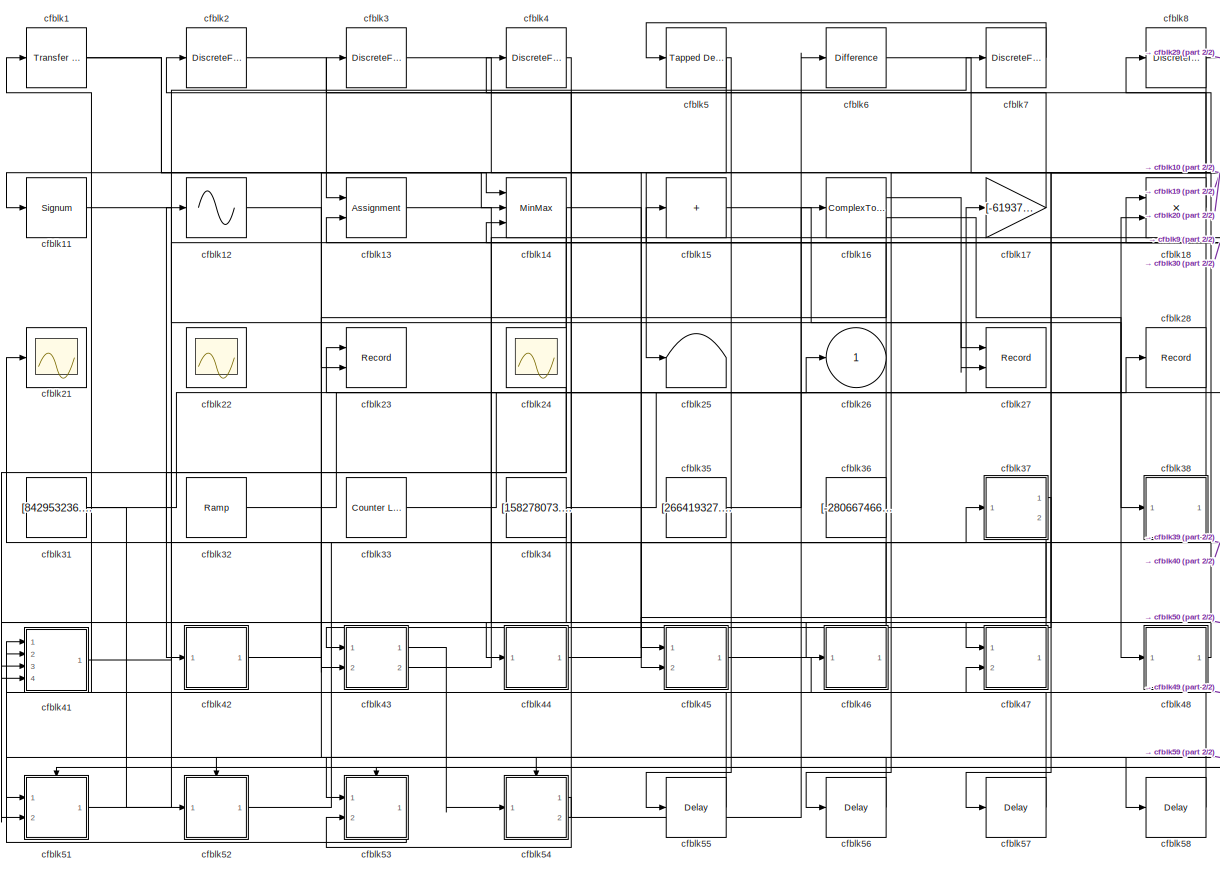
[diagram: root canvas - part 1/2, most of the canvas]
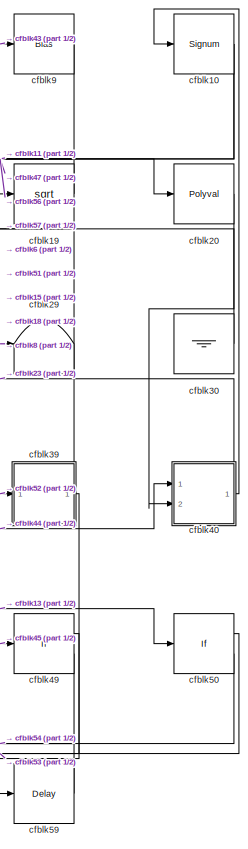
[diagram: root canvas - part 2/2, right side, full height]
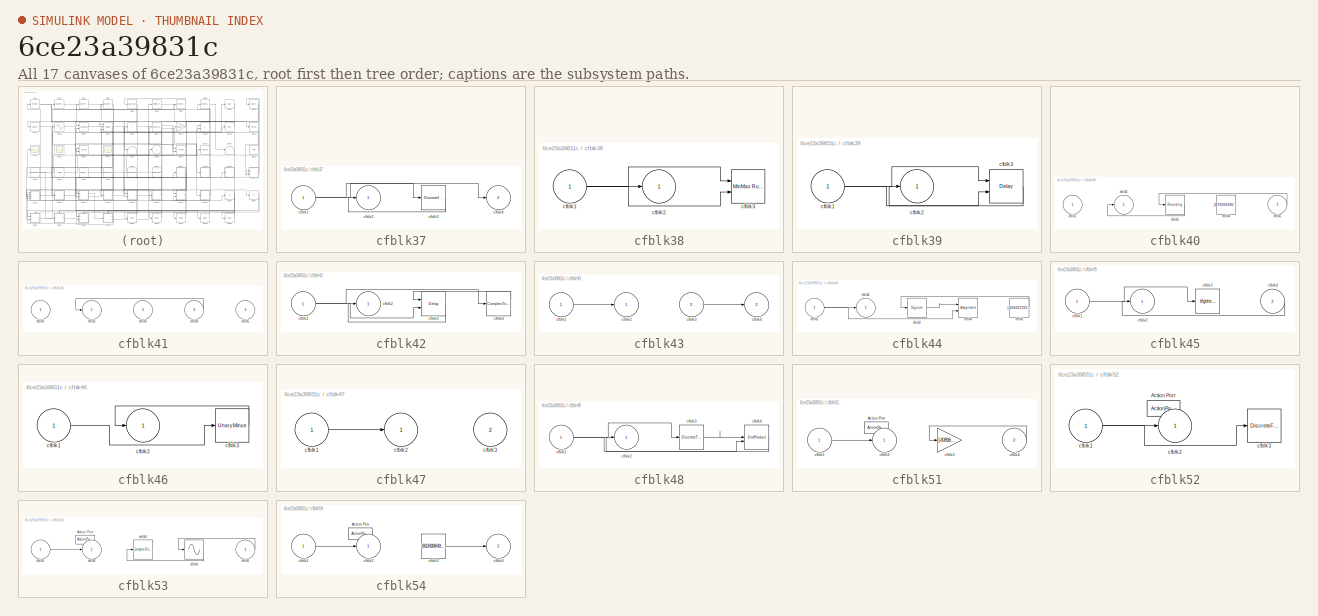
[diagram: thumbnail index - all 17 canvases of the model, root first then tree order]
MODEL slx_6ce23a39831c
KIND model
CONFIG AbsTol = auto
CONFIG EnableMultiTasking = off
CONFIG FixedStep = auto
CONFIG MaxStep = auto
CONFIG MinStep = auto
CONFIG RelTol = 1e-3
CONFIG SampleTimeConstraint = Unconstrained
CONFIG SolverName = VariableStepAuto
CONFIG StartTime = 0.0
CONFIG StopTime = 10.0
BLOCK [Reference] cfblk1  REF=simulink/Discrete/Transfer Fcn
First Order
  Ports = [1, 1]
  SourceBlock = simulink/Discrete/Transfer Fcn\nFirst Order
  SourceProductBaseCode = SL
  SourceType = First Order Transfer Fcn
BLOCK [Signum] cfblk10
BLOCK [Signum] cfblk11
BLOCK [Sin] cfblk12
  Ports = [1, 1]
  SampleTime = 0
  TimeSource = Use external signal
BLOCK [Assignment] cfblk13
  DiagnosticForDimensions = Warning
  IndexOptions = Index vector (dialog)
  Indices = 1
  OutputSizes = 1
  Ports = [2, 1]
BLOCK [MinMax] cfblk14
  Function = max
  Inputs = 3
  Ports = [3, 1]
BLOCK [Sum] cfblk15
  IconShape = rectangular
  Inputs = +
  Ports = [1, 1]
BLOCK [ComplexToRealImag] cfblk16
  Ports = [1, 2]
BLOCK [Gain] cfblk17
  Gain = [-619372760.811448]
BLOCK [Product] cfblk18
  Ports = [2, 1]
BLOCK [Sqrt] cfblk19
BLOCK [DiscreteFir] cfblk2
  InputPortMap = u0
  OutputPortMap = o0
  Ports = [1, 1]
  SampleTime = 1
BLOCK [Polyval] cfblk20
  Coefs = [ +2.081618890e-019, -1.441693666e-014, +4.719686976e-010, -8.536869453e-006, +1.621573104e-001, -8.087801117e+001 ]
BLOCK [Scope] cfblk21
  Floating = off
  NumInputPorts = 1
  Ports = [1]
BLOCK [Scope] cfblk22
  Floating = on
  NumInputPorts = 1
  Ports = []
BLOCK [Record] cfblk23
  CompatibilityTag = XY
  FileSettingsInternal = {"entries":[{"content":{"excelSettings":{"content":{},"type":"Streamout.ExcelSettings"}},"type":"Streamout.FileSettingStorage","uuid":"0ee5e5d3-5951-4c48-9d89-32d8b12ba518"}],"packageUris":["http://schema.mathworks.com/mf0/streamout_blocks/R2020a"],"version":"1.0"}
  Layout = [1 1]
  Ports = [2]
  SignalsInternal = {"entries":[{"content":{"signals":[{"content":{"blockPath":["sampleModel223/cfblk23"],"channel":[],"dimensions":[1],"domain":"sampleModel223/cfblk23","lineColor":"#a2142f","plots":[1],"port":1,"sid":[""],"signalID":8702,"signalName":"cfblk40"},"type":"RecordBlkView.Signal","uuid":"30bc6bd1-39a8-4b59-9cbd-2b18e3afbf50"},{"content":{"blockPath":["sampleModel223/cfblk23"],"channel":[],"dimensions":[1...<+385ch>
  VisualizationBindings = {"xyplotplugin":{"info":[{"series":[{"bindingParametersList":[{"parameter":"X-Axis","signalID":8702,"signalName":"cfblk40"},{"parameter":"Y-Axis","signalID":8706,"signalName":"cfblk16:2"}],"seriesID":59310}],"subplotID":1}]}}
BLOCK [Scope] cfblk24
  Floating = on
  NumInputPorts = 1
  Ports = []
BLOCK [Terminator] cfblk25
BLOCK [Outport] cfblk26
BLOCK [Record] cfblk27
  CompatibilityTag = XY
  FileSettingsInternal = {"entries":[{"content":{"excelSettings":{"content":{},"type":"Streamout.ExcelSettings"}},"type":"Streamout.FileSettingStorage","uuid":"b9045ad8-1652-4b93-96d3-11a4ff897f15"}],"packageUris":["http://schema.mathworks.com/mf0/streamout_blocks/R2020a"],"version":"1.0"}
  Layout = [1 1]
  Ports = [2]
  SignalsInternal = {"entries":[{"content":{"signals":[{"content":{"blockPath":["sampleModel223/cfblk27"],"channel":[],"dimensions":[1],"domain":"sampleModel223/cfblk27","lineColor":"#a2142f","plots":[1],"port":1,"sid":[""],"signalID":8710,"signalName":"cfblk16:1"},"type":"RecordBlkView.Signal","uuid":"1ed41653-2a62-4b63-b81e-2f1a57827a1a"},{"content":{"blockPath":["sampleModel223/cfblk27"],"channel":[],"dimensions":...<+385ch>
  VisualizationBindings = {"xyplotplugin":{"info":[{"series":[{"bindingParametersList":[{"parameter":"X-Axis","signalID":8710,"signalName":"cfblk16:1"},{"parameter":"Y-Axis","signalID":8714,"signalName":"cfblk11"}],"seriesID":26914}],"subplotID":1}]}}
BLOCK [Record] cfblk28
  FileSettingsInternal = {"entries":[{"content":{"excelSettings":{"content":{},"type":"Streamout.ExcelSettings"}},"type":"Streamout.FileSettingStorage","uuid":"d52c9f09-3e23-41ac-822c-45c95d6e0353"}],"packageUris":["http://schema.mathworks.com/mf0/streamout_blocks/R2020a"],"version":"1.0"}
  Ports = [1]
  SignalsInternal = {"entries":[{"content":{"signals":[{"content":{"blockPath":["sampleModel223/cfblk28"],"channel":[],"dimensions":[1],"domain":"sampleModel223/cfblk28","lineColor":"#a2142f","plots":[1],"port":1,"sid":[""],"signalID":8718,"signalName":"cfblk33"},"type":"RecordBlkView.Signal","uuid":"ab8a1c3b-5c01-4c72-8513-52e01dea01a3"}]},"type":"RecordBlkView.InputSignals","uuid":"638a2006-718f-46db-b654-e0460e5be...<+97ch>
  VisualizationBindings = {"sparklinesplugin":{"info":[{"bindingParametersList":[],"subplotID":1}]}}
BLOCK [Terminator] cfblk29
BLOCK [DiscreteFir] cfblk3
  InputPortMap = u0
  OutputPortMap = o0
  Ports = [1, 1]
  SampleTime = 1
BLOCK [Ground] cfblk30
BLOCK [Constant] cfblk31
  SampleTime = 1
  Value = [842953236.039546]
BLOCK [Reference] cfblk32  REF=simulink/Sources/Ramp
  Ports = [0, 1]
  SourceBlock = simulink/Sources/Ramp
  SourceProductBaseCode = SL
  SourceType = Ramp
BLOCK [Reference] cfblk33  REF=simulink/Sources/Counter
Limited
  Ports = [0, 1]
  SourceBlock = simulink/Sources/Counter\nLimited
  SourceProductBaseCode = SL
  SourceType = Counter Limited
BLOCK [Constant] cfblk34
  SampleTime = 1
  Value = [158278073.144077]
BLOCK [Constant] cfblk35
  SampleTime = 1
  Value = [266419327.095353]
BLOCK [Constant] cfblk36
  SampleTime = 1
  Value = [-280667466.235929]
BLOCK [SubSystem] cfblk37
  Ports = [1, 2]
  RequestExecContextInheritance = off
BLOCK [Inport] cfblk37/cfblk1
BLOCK [Outport] cfblk37/cfblk2
BLOCK [DiscreteIntegrator] cfblk37/cfblk3
  ICPrevOutput = DiscIntNeverNeededParam
  ICPrevScaledInput = DiscIntNeverNeededParam
  InitialConditionSetting = Auto
  Ports = [1, 1]
BLOCK [Outport] cfblk37/cfblk4
  Port = 2
BLOCK [SubSystem] cfblk38
  Ports = [1, 1]
  RequestExecContextInheritance = off
BLOCK [Inport] cfblk38/cfblk1
BLOCK [Outport] cfblk38/cfblk2
BLOCK [Reference] cfblk38/cfblk3  REF=simulink/Math
Operations/MinMax
Running
Resettable
  Ports = [2, 1]
  SourceBlock = simulink/Math\nOperations/MinMax\nRunning\nResettable
  SourceProductBaseCode = SL
  SourceType = MinMax Running Resettable
BLOCK [SubSystem] cfblk39
  Ports = [1, 1]
  RequestExecContextInheritance = off
BLOCK [Inport] cfblk39/cfblk1
BLOCK [Outport] cfblk39/cfblk2
BLOCK [Delay] cfblk39/cfblk3
  InputPortMap = u0,e6
  Ports = [2, 1]
  SampleTime = 1
  ShowEnablePort = on
BLOCK [DiscreteFir] cfblk4
  InputPortMap = u0
  OutputPortMap = o0
  Ports = [1, 1]
  SampleTime = 1
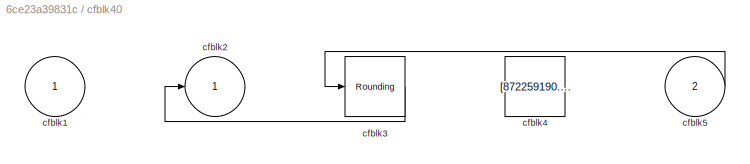
BLOCK [SubSystem] cfblk40
  Ports = [2, 1]
  RequestExecContextInheritance = off
BLOCK [Inport] cfblk40/cfblk1
BLOCK [Outport] cfblk40/cfblk2
BLOCK [Rounding] cfblk40/cfblk3
BLOCK [Constant] cfblk40/cfblk4
  SampleTime = 1
  Value = [872259190.837791]
BLOCK [Inport] cfblk40/cfblk5
  Port = 2
BLOCK [SubSystem] cfblk41
  Ports = [4, 1]
  RequestExecContextInheritance = off
BLOCK [Inport] cfblk41/cfblk1
BLOCK [Outport] cfblk41/cfblk2
BLOCK [Inport] cfblk41/cfblk3
  Port = 2
BLOCK [Inport] cfblk41/cfblk4
  Port = 3
BLOCK [Inport] cfblk41/cfblk5
  Port = 4
BLOCK [SubSystem] cfblk42
  Ports = [1, 1]
  RequestExecContextInheritance = off
BLOCK [Inport] cfblk42/cfblk1
BLOCK [Outport] cfblk42/cfblk2
BLOCK [Delay] cfblk42/cfblk3
  DelayLengthSource = Input port
  InputPortMap = u0,p1
  Ports = [2, 1]
  SampleTime = 1
BLOCK [ComplexToMagnitudeAngle] cfblk42/cfblk4
  Ports = [1, 2]
BLOCK [SubSystem] cfblk43
  Ports = [2, 2]
  RequestExecContextInheritance = off
BLOCK [Inport] cfblk43/cfblk1
BLOCK [Outport] cfblk43/cfblk2
BLOCK [Inport] cfblk43/cfblk3
  Port = 2
BLOCK [Outport] cfblk43/cfblk4
  Port = 2
BLOCK [SubSystem] cfblk44
  Ports = [1, 1]
  RequestExecContextInheritance = off
BLOCK [Inport] cfblk44/cfblk1
BLOCK [Outport] cfblk44/cfblk2
BLOCK [Signum] cfblk44/cfblk3
BLOCK [Assignment] cfblk44/cfblk4
  DiagnosticForDimensions = Warning
  IndexOptions = Index vector (dialog)
  Indices = 1
  OutputSizes = 1
  Ports = [2, 1]
BLOCK [Constant] cfblk44/cfblk5
  SampleTime = 1
  Value = [-291637221.913269]
BLOCK [SubSystem] cfblk45
  Ports = [2, 1]
  RequestExecContextInheritance = off
BLOCK [Inport] cfblk45/cfblk1
BLOCK [Outport] cfblk45/cfblk2
BLOCK [Trigonometry] cfblk45/cfblk3
  Ports = [1, 1]
BLOCK [Inport] cfblk45/cfblk4
  Port = 2
BLOCK [SubSystem] cfblk46
  Ports = [1, 1]
  RequestExecContextInheritance = off
BLOCK [Inport] cfblk46/cfblk1
BLOCK [Outport] cfblk46/cfblk2
BLOCK [UnaryMinus] cfblk46/cfblk3
BLOCK [SubSystem] cfblk47
  Ports = [2, 1]
  RequestExecContextInheritance = off
BLOCK [Inport] cfblk47/cfblk1
BLOCK [Outport] cfblk47/cfblk2
BLOCK [Inport] cfblk47/cfblk3
  Port = 2
BLOCK [SubSystem] cfblk48
  Ports = [1, 1]
  RequestExecContextInheritance = off
BLOCK [Inport] cfblk48/cfblk1
BLOCK [Outport] cfblk48/cfblk2
BLOCK [DiscreteTransferFcn] cfblk48/cfblk3
  InputPortMap = u0
  Ports = [1, 1]
  SampleTime = 1
BLOCK [DotProduct] cfblk48/cfblk4
  OutDataTypeStr = Inherit: Inherit via internal rule
BLOCK [If] cfblk49
  IfExpression = u1 >= 0
  Ports = [1, 2]
  SampleTime = 1
BLOCK [Reference] cfblk5  REF=simulink/Discrete/Tapped Delay
  Ports = [1, 1]
  SourceBlock = simulink/Discrete/Tapped Delay
  SourceProductBaseCode = SL
  SourceType = Tapped Delay Line
BLOCK [If] cfblk50
  IfExpression = u1 >= 0
  Ports = [1, 2]
  SampleTime = 1
BLOCK [SubSystem] cfblk51
  Ports = [2, 1, 0, 0, 0, 0, 0, 1]
  RequestExecContextInheritance = off
  TreatAsAtomicUnit = on
BLOCK [ActionPort] cfblk51/Action Port
  ActionPortLabel = if(u1 >= 0)
BLOCK [Inport] cfblk51/cfblk1
BLOCK [Outport] cfblk51/cfblk2
BLOCK [Gain] cfblk51/cfblk3
  Gain = [-838966368.618346]
BLOCK [Inport] cfblk51/cfblk4
  Port = 2
BLOCK [SubSystem] cfblk52
  Ports = [1, 1, 0, 0, 0, 0, 0, 1]
  RequestExecContextInheritance = off
  TreatAsAtomicUnit = on
BLOCK [ActionPort] cfblk52/Action Port
  ActionPortLabel = else
BLOCK [Inport] cfblk52/cfblk1
BLOCK [Outport] cfblk52/cfblk2
BLOCK [DiscreteFilter] cfblk52/cfblk3
  InputPortMap = u0
  Ports = [1, 1]
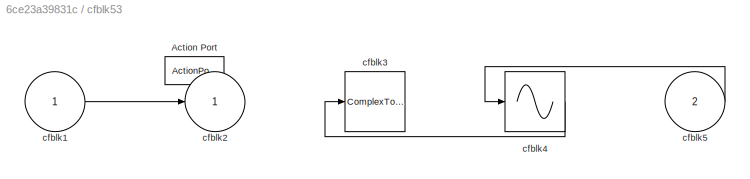
BLOCK [SubSystem] cfblk53
  Ports = [2, 1, 0, 0, 0, 0, 0, 1]
  RequestExecContextInheritance = off
  TreatAsAtomicUnit = on
BLOCK [ActionPort] cfblk53/Action Port
  ActionPortLabel = if(u1 >= 0)
BLOCK [Inport] cfblk53/cfblk1
BLOCK [Outport] cfblk53/cfblk2
BLOCK [ComplexToMagnitudeAngle] cfblk53/cfblk3
  Ports = [1, 2]
BLOCK [Sin] cfblk53/cfblk4
  Ports = [1, 1]
  SampleTime = 0
  TimeSource = Use external signal
BLOCK [Inport] cfblk53/cfblk5
  Port = 2
BLOCK [SubSystem] cfblk54
  Ports = [1, 2, 0, 0, 0, 0, 0, 1]
  RequestExecContextInheritance = off
  TreatAsAtomicUnit = on
BLOCK [ActionPort] cfblk54/Action Port
  ActionPortLabel = else
BLOCK [Inport] cfblk54/cfblk1
BLOCK [Outport] cfblk54/cfblk2
BLOCK [Constant] cfblk54/cfblk3
  SampleTime = 1
  Value = [663499649.234152]
BLOCK [Outport] cfblk54/cfblk4
  Port = 2
BLOCK [Delay] cfblk55
  InputPortMap = u0
  Ports = [1, 1]
  SampleTime = 1
BLOCK [Delay] cfblk56
  InputPortMap = u0
  Ports = [1, 1]
  SampleTime = 1
BLOCK [Delay] cfblk57
  InputPortMap = u0
  Ports = [1, 1]
  SampleTime = 1
BLOCK [Delay] cfblk58
  InputPortMap = u0
  Ports = [1, 1]
  SampleTime = 1
BLOCK [Delay] cfblk59
  InputPortMap = u0
  Ports = [1, 1]
  SampleTime = 1
BLOCK [Reference] cfblk6  REF=simulink/Discrete/Difference
  Ports = [1, 1]
  SourceBlock = simulink/Discrete/Difference
  SourceProductBaseCode = SL
  SourceType = Difference
BLOCK [DiscreteFir] cfblk7
  InputPortMap = u0
  OutputPortMap = o0
  Ports = [1, 1]
  SampleTime = 1
BLOCK [DiscreteIntegrator] cfblk8
  ICPrevOutput = DiscIntNeverNeededParam
  ICPrevScaledInput = DiscIntNeverNeededParam
  InitialConditionSetting = Auto
  Ports = [1, 1]
BLOCK [Bias] cfblk9
  Bias = [629134870.788105]
  SaturateOnIntegerOverflow = off
NET cfblk10:1 -> cfblk56:1, cfblk57:1
LINE cfblk11:1 -> cfblk27:2
LINE cfblk12:1 -> cfblk58:1
LINE cfblk13:1 -> cfblk50:1
NET cfblk14:1 -> cfblk41:4, cfblk42:1, cfblk46:1
LINE cfblk15:1 -> cfblk38:1
LINE cfblk16:1 -> cfblk27:1
NET cfblk16:2 -> cfblk23:2, cfblk48:1
LINE cfblk17:1 -> cfblk3:1
LINE cfblk18:1 -> cfblk2:1
LINE cfblk19:1 -> cfblk11:1
NET cfblk1:1 -> cfblk14:1, cfblk14:2
LINE cfblk20:1 -> cfblk40:2
LINE cfblk2:1 -> cfblk13:1
LINE cfblk30:1 -> cfblk18:1
NET cfblk31:1 -> cfblk26:1, cfblk52:1
LINE cfblk32:1 -> cfblk18:2
LINE cfblk33:1 -> cfblk28:1
NET cfblk34:1 -> cfblk17:1, cfblk41:3
LINE cfblk35:1 -> cfblk16:1
NET cfblk36:1 -> cfblk4:1, cfblk51:2
NET cfblk37/cfblk1:1 -> cfblk37/cfblk3:1, cfblk37/cfblk4:1
LINE cfblk37/cfblk3:1 -> cfblk37/cfblk2:1
LINE cfblk37:1 -> cfblk43:1
LINE cfblk37:2 -> cfblk45:2
NET cfblk38/cfblk1:1 -> cfblk38/cfblk2:1, cfblk38/cfblk3:1, cfblk38/cfblk3:2
LINE cfblk38:1 -> cfblk13:2
NET cfblk39/cfblk1:1 -> cfblk39/cfblk3:1, cfblk39/cfblk3:2
LINE cfblk39/cfblk3:1 -> cfblk39/cfblk2:1
NET cfblk39:1 -> cfblk15:1, cfblk59:1
LINE cfblk3:1 -> cfblk45:1
LINE cfblk40/cfblk3:1 -> cfblk40/cfblk2:1
LINE cfblk40/cfblk5:1 -> cfblk40/cfblk3:1
NET cfblk40:1 -> cfblk10:1, cfblk23:1
LINE cfblk41/cfblk4:1 -> cfblk41/cfblk2:1
LINE cfblk41:1 -> cfblk7:1
NET cfblk42/cfblk1:1 -> cfblk42/cfblk3:2, cfblk42/cfblk4:1
LINE cfblk42/cfblk3:1 -> cfblk42/cfblk2:1
LINE cfblk42/cfblk4:1 -> cfblk42/cfblk3:1
LINE cfblk42:1 -> cfblk37:1
LINE cfblk43/cfblk1:1 -> cfblk43/cfblk2:1
LINE cfblk43/cfblk3:1 -> cfblk43/cfblk4:1
LINE cfblk43:1 -> cfblk54:1
LINE cfblk43:2 -> cfblk9:1
NET cfblk44/cfblk1:1 -> cfblk44/cfblk2:1, cfblk44/cfblk4:2
LINE cfblk44/cfblk3:1 -> cfblk44/cfblk4:1
LINE cfblk44/cfblk5:1 -> cfblk44/cfblk3:1
LINE cfblk44:1 -> cfblk40:1
LINE cfblk45/cfblk1:1 -> cfblk45/cfblk3:1
LINE cfblk45/cfblk4:1 -> cfblk45/cfblk2:1
LINE cfblk45:1 -> cfblk49:1
LINE cfblk46/cfblk1:1 -> cfblk46/cfblk3:1
LINE cfblk46/cfblk3:1 -> cfblk46/cfblk2:1
LINE cfblk46:1 -> cfblk21:1
LINE cfblk47/cfblk1:1 -> cfblk47/cfblk2:1
LINE cfblk47:1 -> cfblk12:1
NET cfblk48/cfblk1:1 -> cfblk48/cfblk3:1, cfblk48/cfblk4:2
LINE cfblk48/cfblk3:1 -> cfblk48/cfblk4:1
LINE cfblk48/cfblk4:1 -> cfblk48/cfblk2:1
LINE cfblk48:1 -> cfblk8:1
LINE cfblk49:1 -> cfblk51:ifaction
LINE cfblk49:2 -> cfblk52:ifaction
LINE cfblk4:1 -> cfblk44:1
LINE cfblk50:1 -> cfblk53:ifaction
LINE cfblk50:2 -> cfblk54:ifaction
LINE cfblk51/cfblk1:1 -> cfblk51/cfblk2:1
LINE cfblk51/cfblk4:1 -> cfblk51/cfblk3:1
LINE cfblk51:1 -> cfblk19:1
NET cfblk52/cfblk1:1 -> cfblk52/cfblk2:1, cfblk52/cfblk3:1
LINE cfblk52:1 -> cfblk39:1
LINE cfblk53/cfblk1:1 -> cfblk53/cfblk2:1
LINE cfblk53/cfblk4:1 -> cfblk53/cfblk3:1
LINE cfblk53/cfblk5:1 -> cfblk53/cfblk4:1
LINE cfblk53:1 -> cfblk41:1
LINE cfblk54/cfblk1:1 -> cfblk54/cfblk2:1
LINE cfblk54/cfblk3:1 -> cfblk54/cfblk4:1
LINE cfblk54:1 -> cfblk53:2
NET cfblk54:2 -> cfblk41:2, cfblk6:1
LINE cfblk55:1 -> cfblk1:1
LINE cfblk56:1 -> cfblk53:1
LINE cfblk57:1 -> cfblk14:3
LINE cfblk58:1 -> cfblk47:2
LINE cfblk59:1 -> cfblk51:1
NET cfblk5:1 -> cfblk25:1, cfblk55:1
LINE cfblk6:1 -> cfblk20:1
LINE cfblk7:1 -> cfblk5:1
NET cfblk8:1 -> cfblk29:1, cfblk43:2
LINE cfblk9:1 -> cfblk47:1
note: NET lines group one-source signal fan-out (src -> all destinations, sorted); 1:1 wires keep LINE
